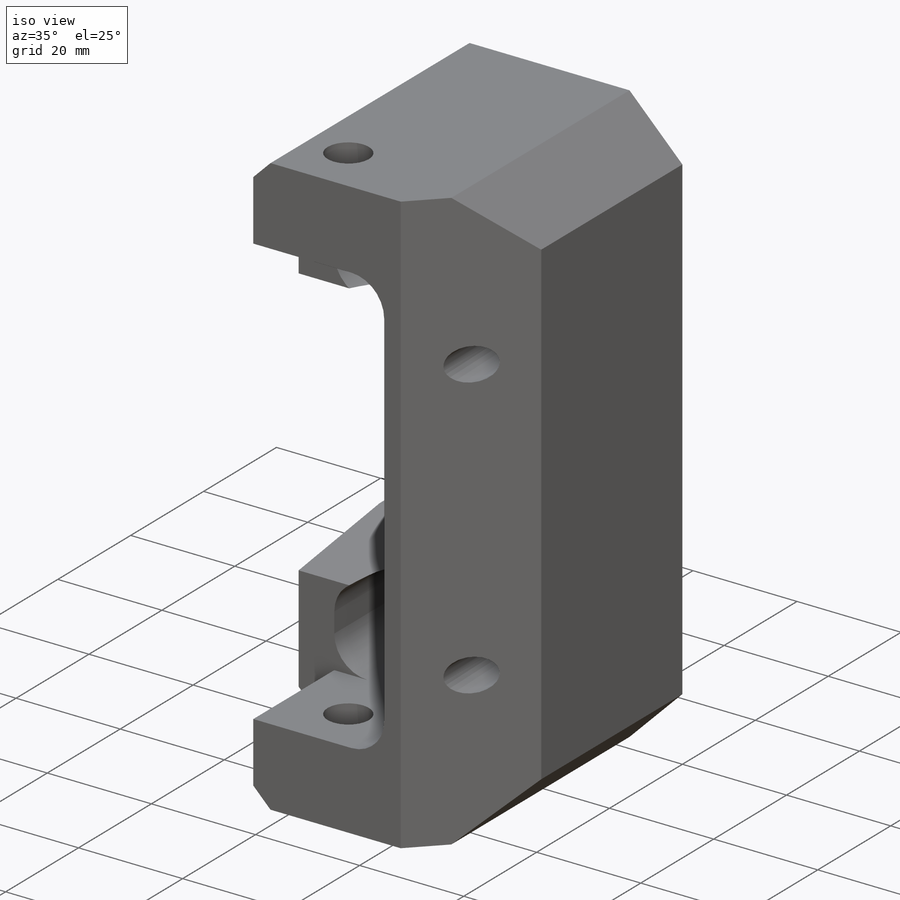
[diagram: iso view]
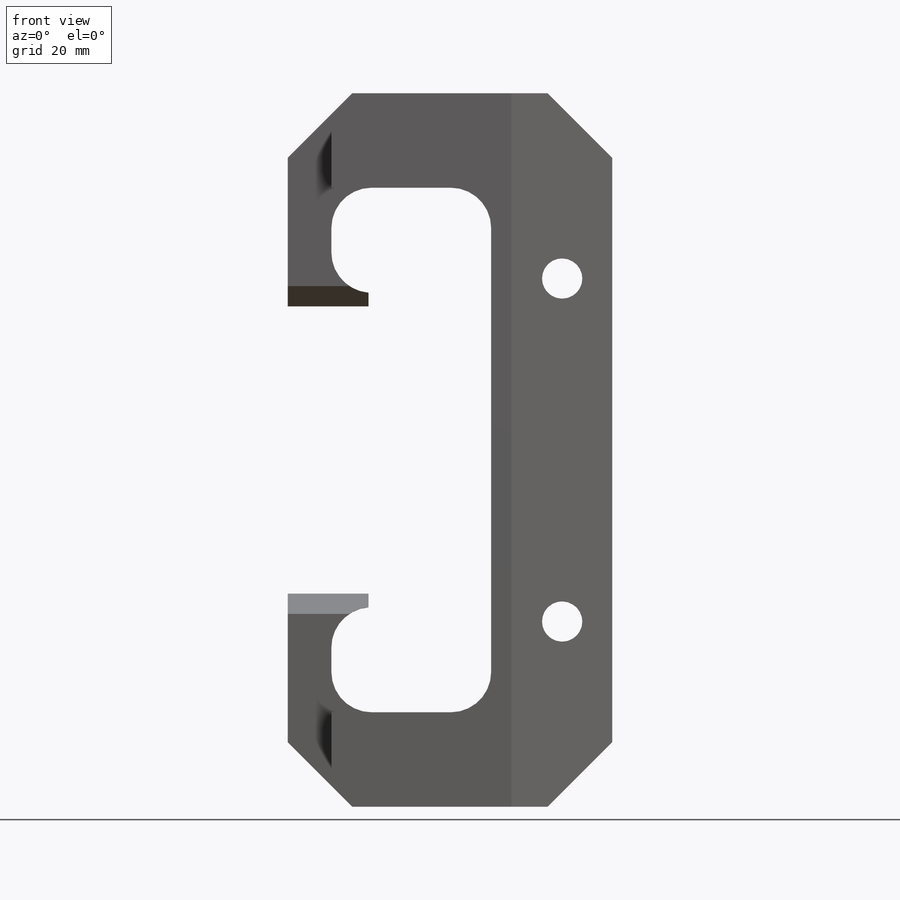
[diagram: front view]
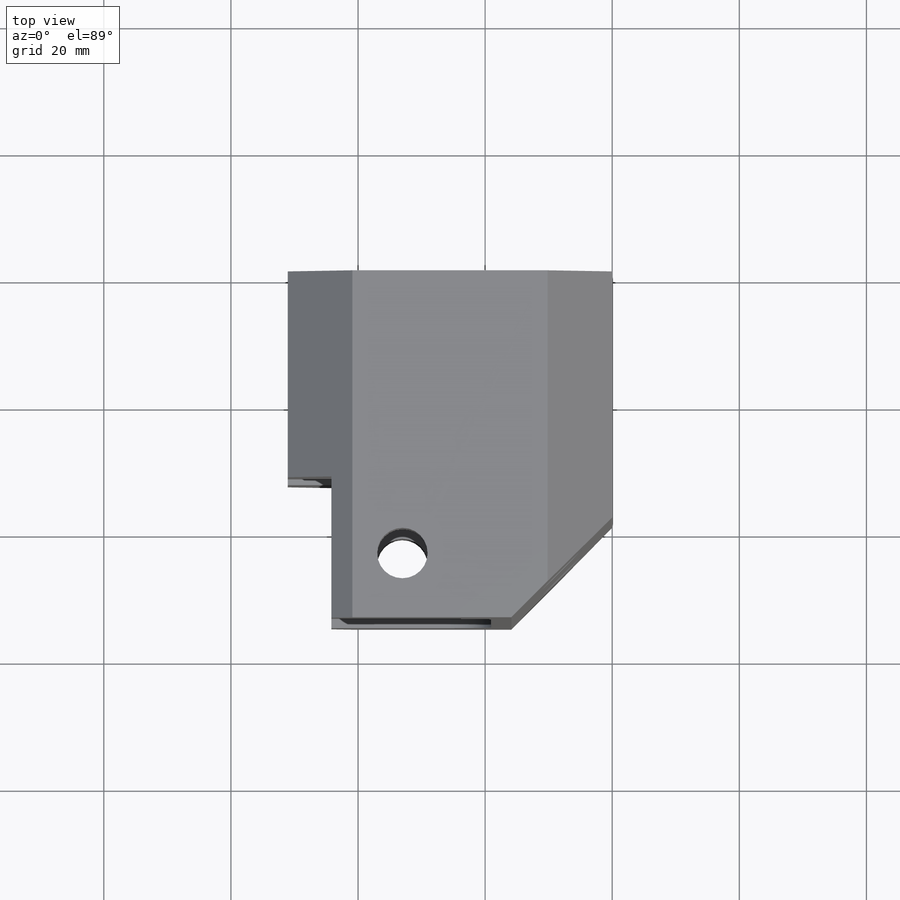
[diagram: top view]
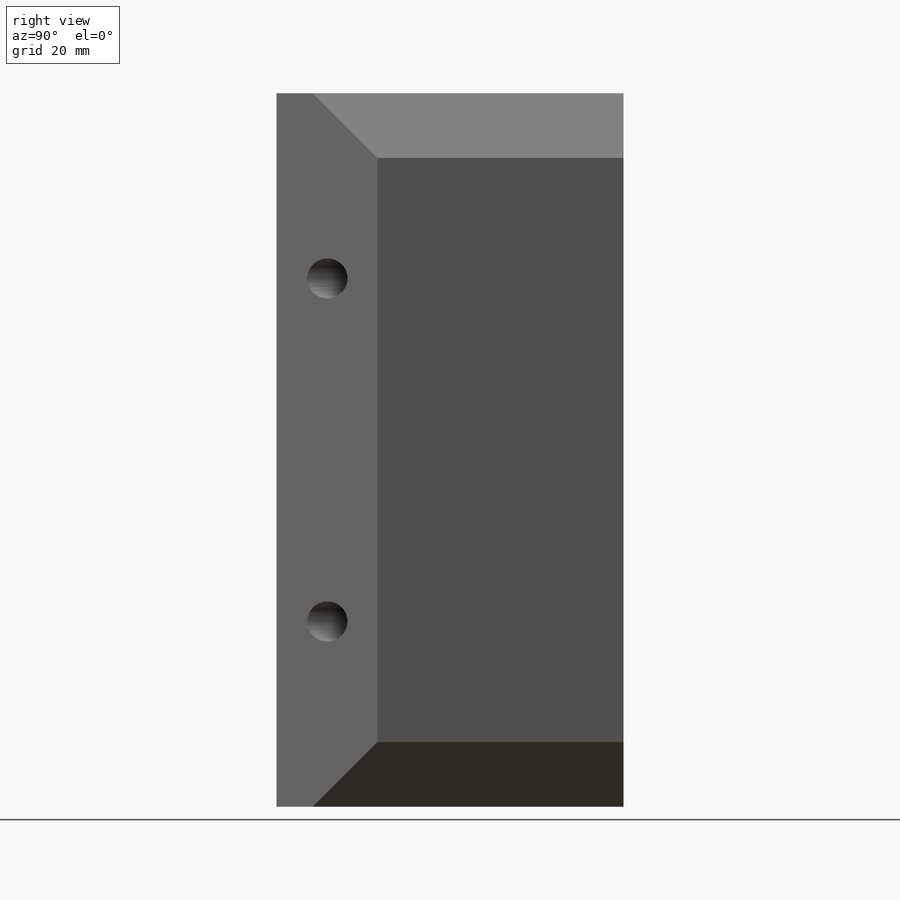
[diagram: right view]
SOLIDWORKS PART (.sldprt)
format: sldprt  version: not decoded by parser v0  size: 609,280 bytes
history: native  units: mm
features: fillet x32, sketch x15, plane x4, cut_extrude x4, extrude x2, hole x2, chamfer x2, material x1, mirror x1 (+11 scaffold rows collapsed)
feature tree (74):
  scaffold x11  (default folders/planes/origin — collapsed)
  material  "6061-T6 Al"
  plane  "XY"
  plane  "XZ"
  plane  "YZ"
  sketch  "Sketch1"  dims[c1.D1=6.35mm c1.D2=7.9375mm c1.D21=7.9375mm c1.D22=15.24mm c1.D3=51.054mm c1.D4=~2.678279mm c1.D5=~286.280598mm c1.D6=57.15mm c1.D7=~2.155261mm c2.D7=45.0deg c2.D8=1.524mm c2.D9=72.39mm c2.D10=~15.715448mm c3.D10=45.0deg c3.D11=11.1125mm c3.D12=~3.325641mm c4.D12=~40.893395deg c5.D12=34.544mm c5.D13=~2.155261mm c6.D13=45.0deg c6.D14=1.524mm c6.D15=~20.799219mm c6.D16=~3.325641mm c7.D16=~40.893395deg c7.D17=~2.177143mm c7.D18=~10.886182mm c7.D19=~2.155261mm c8.D19=45.0deg c9.D19=~6.846721mm c9.D20=~7.775781mm c9.D5=26.035mm]
  sketch  "Sketch2"  dims[D1=31.75mm]
  sketch  "Sketch3"  dims[D1=11.1125mm D2=22.225mm]
  sketch  "Sketch5"  dims[c1.D8=6.35mm c1.D6=7.9375mm c1.D1=19.05mm c1.D2=12.7mm c1.D3=45.212mm c1.D4=~12.141109mm c2.D4=45.0deg c2.D5=6.858mm c2.D6=6.985mm c2.D7=10.16mm c2.D2=112.268mm c3.D6=82.55mm c3.D9=51.054mm c3.D10=28.321mm c4.D9=3.81mm c4.D10=13.97mm c5.D9=1.27mm]
  extrude  "Extrude1"  Depth=54.61mm
  sketch  "Sketch6"  dims[c1.D1=7.9375mm c1.D3=20.6375mm c1.D2=9.525mm c2.D3=14.097mm c2.D4=22.225mm c2.D5=33.02mm c2.D6=6.858mm c2.D2=44.5008mm]
  cut_extrude  "Cut-Extrude1"  [1 undecoded]
  sketch  "Sketch8"
  cut_extrude  "Cut-Extrude2"  [1 undecoded]
  sketch  "Sketch13"  dims[D1=10.541mm D2=34.544mm]
  cut_extrude  "Extrude4"  Depth=33.02mm
  fillet  "Fillet1"  Radius=6.35mm RestraintType=0 Value=0mm cosRestraintComp:1=0mm cosRestraintComp:2=0mm cosRestraintComp:3=0mm cosRestraintComp:4=0mm cosRestraintComp:5=0mm cosRestraintComp:6=0mm Unit=3000mm AnalysisType=0mm MeshType=0mm cosRestraintCompCheck1=0mm cosRestraintCompCheck2=0mm cosRestraintCompCheck3=0mm cosRestraintCompCheck4=0mm
  fillet  "stress:Force1-1"  Radius=0mm cosForceComp:1=0mm cosForceComp:2=0mm cosForceComp:3=-4500000mm cosForceComp:4=0mm cosForceComp:5=0mm cosForceComp:6=0mm cosForceTorqueNF=1000mm cosForceCompCheck1=0mm cosForceCompCheck2=0mm cosForceCompCheck3=1000mm cosForceCompCheck4=0mm cosForceCompCheck5=0mm cosForceCompCheck6=0mm Unit=1000mm AnalysisType=0mm
  fillet  "stress:Force1-2"  Radius=0mm cosForceComp:1=0mm cosForceComp:2=0mm cosForceComp:3=-4500000mm cosForceComp:4=0mm cosForceComp:5=0mm cosForceComp:6=0mm cosForceTorqueNF=1000mm cosForceCompCheck1=0mm cosForceCompCheck2=0mm cosForceCompCheck3=1000mm cosForceCompCheck4=0mm cosForceCompCheck5=0mm cosForceCompCheck6=0mm Unit=1000mm AnalysisType=0mm
  fillet  "stress:Material-2"  Radius=10444505000.0mm cosMaterialEX=10444505000.0mm cosMaterialNUXY=330mm cosMaterialGXY=3916689200.0mm cosMaterialALPX=0.013889mm cosMaterialDENS=97.543705mm cosMaterialKX=1.605449mm cosMaterialC=229.33588mm Units=1000mm AnalysisType=0mm MeshType=0mm cosMaterialSIGYLD=0mm cosMaterialSIGXT=0mm cosMaterialSIGXC=0mm sMaterialSourceName=0mm sMaterialName=0mm
  fillet  "BSIDef1-1"  Radius=353073428000.0mm ID=353073428000.0mm bsiID=0
  fillet  "FaceID-1"  Radius=1000mm faceID=1000mm cosFaceID=0
  fillet  "FaceID-2"  Radius=2000mm faceID=2000mm
  fillet  "FaceID-3"  Radius=3000mm faceID=3000mm
  fillet  "FaceID-4"  Radius=4000mm faceID=4000mm
  fillet  "FaceID-5"  Radius=5000mm faceID=5000mm
  fillet  "FaceID-6"  Radius=6000mm faceID=6000mm
  fillet  "FaceID-7"  Radius=7000mm faceID=7000mm
  fillet  "FaceID-8"  Radius=8000mm faceID=8000mm
  fillet  "FaceID-9"  Radius=9000mm faceID=9000mm
  fillet  "FaceID-10"  Radius=10000mm faceID=10000mm
  fillet  "FaceID-11"  Radius=11000mm faceID=11000mm
  fillet  "FaceID-12"  Radius=12000mm faceID=12000mm
  fillet  "FaceID-13"  Radius=13000mm faceID=13000mm
  fillet  "FaceID-14"  Radius=14000mm faceID=14000mm
  fillet  "FaceID-15"  Radius=15000mm faceID=15000mm
  fillet  "FaceID-16"  Radius=16000mm faceID=16000mm
  fillet  "FaceID-17"  Radius=17000mm faceID=17000mm
  fillet  "FaceID-18"  Radius=18000mm faceID=18000mm
  fillet  "FaceID-19"  Radius=19000mm faceID=19000mm
  fillet  "FaceID-20"  Radius=20000mm faceID=20000mm
  fillet  "FaceID-21"  Radius=21000mm faceID=21000mm
  fillet  "FaceID-22"  Radius=22000mm faceID=22000mm
  fillet  "FaceID-23"  Radius=23000mm faceID=23000mm
  fillet  "FaceID-24"  Radius=24000mm faceID=24000mm
  fillet  "FaceID-25"  Radius=25000mm faceID=25000mm
  fillet  "FaceID-26"  Radius=26000mm faceID=26000mm
  fillet  "FaceID-27"  Radius=27000mm faceID=27000mm
  sketch  "pin hole sketch"  dims[D1=7.9375mm D2=53.975mm D3=43.18mm]
  sketch  "Sketch14"  dims[D1=6.35mm D2=6.858mm]
  hole  "CBORE for 1/4 Socket Head Cap Screw1"  Diameter=7.9375mm Depth=19.05mm
  sketch  "Sketch19"  dims[D1=53.975mm D2=7.874mm]
  sketch  "Sketch18"  dims[hole-wizard template sketch: 26 standard entries collapsed; hole parameters kept: c8.Hole Dia.=7.9375mm c8.Hole Depth=19.05mm c8.C'Bore Dia.=7.9756mm c8.C'Bore Depth=2.8448mm c8.Near C'Sink Dia.=8.7122mm c8.D6=~4.399409mm c8.Near C'Sink Angle=90.0deg c8.D7=~14.816244mm c8.Drill Angle=118.0deg]
  chamfer  "Chamfer4"  Distance=10.16mm
  chamfer  "Chamfer7"  Distance=15.875mm Angle=45deg
  sketch  "Sketch22"  dims[c1.D1=6.35mm c1.D2=~6.941801mm c2.D2=90.0deg c3.D2=2.54mm c3.D3=13.97mm c4.D2=12.7mm c4.D3=16.51mm c5.D2=5.842mm c5.D3=2.159mm c5.D4=~8.488647mm]
  hole  "1/4 (0.25) Diameter Hole1"  Diameter=6.35mm Depth=54.61mm
  sketch  "Sketch21"
  sketch  "Sketch20"  dims[hole-wizard template sketch: 60 standard entries collapsed; hole parameters kept: c18.Thru Hole Depth=54.61mm]
  extrude  "Extrude9"  [1 undecoded]
  mirror  "Mirror3"
  sketch  "Sketch17"  dims[D1=22.225mm D2=3.175mm]
  cut_extrude  "Extrude8"  Depth=17.62mm
  plane  "CENTER AXIS PLANE"
decode coverage: 52 of 58 modeling features carry decoded parameters
note: ~ marks probable driven/reference dimensions
note: 3 parameter values undecoded
summary: no parameter record found for 3 features
note: suppression state not decoded; provenance and decode notes live in map.json
